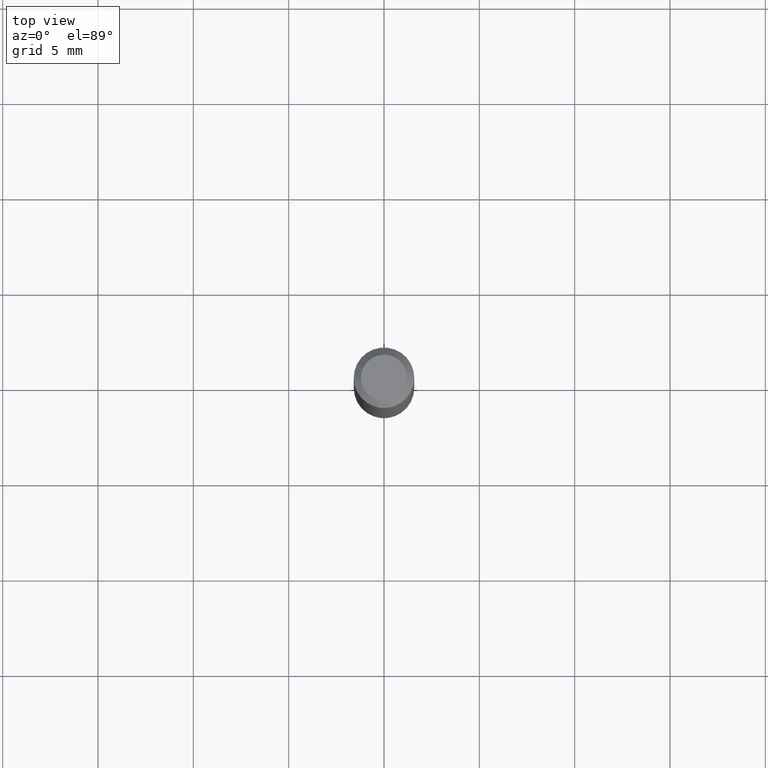
[diagram: clean part render]
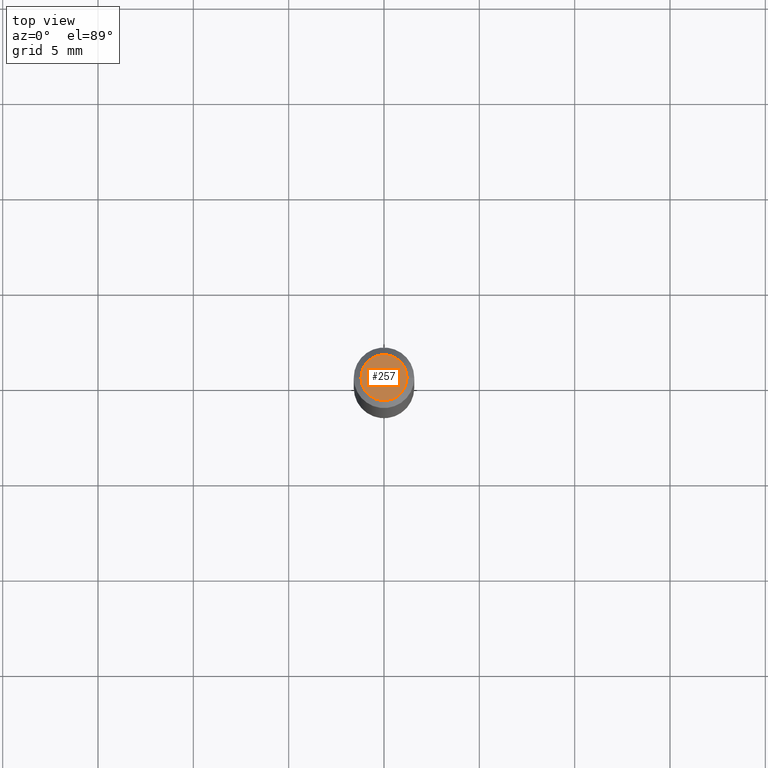
[diagram: same view with one face highlighted and labeled with its STEP entity id]
A machine part, top view. The second image highlights one B-rep face of the part: STEP entity #257.
In plain terms, the highlighted planar face has unit normal (0, -0, -1).
Its self-contained STEP definition (entity closure, byte-faithful):
#10 = CARTESIAN_POINT ( 'NONE',  ( 3.316907271900976096E-16, 0.04749999999999999362, -4.273281759770383169E-16 ) ) ;
#16 = EDGE_CURVE ( 'NONE', #374, #454, #460, .T. ) ;
#18 = EDGE_CURVE ( 'NONE', #454, #374, #49, .T. ) ;
#28 = CARTESIAN_POINT ( 'NONE',  ( 1.278896122067429216E-44, -1.825924719719875646E-30, -5.229656247639779395E-16 ) ) ;
#35 = DIRECTION ( 'NONE',  ( 1.000000000000000000, -6.982962677686267499E-15, 4.852736867747366768E-29 ) ) ;
#49 = CIRCLE ( 'NONE', #179, 0.04749999999999999362 ) ;
#70 = EDGE_LOOP ( 'NONE', ( #269, #209 ) ) ;
#89 = AXIS2_PLACEMENT_3D ( 'NONE', #28, #378, #35 ) ;
#144 = CARTESIAN_POINT ( 'NONE',  ( 0.04749999999999999362, -4.035134999187587991E-16, -5.229656247639753758E-16 ) ) ;
#179 = AXIS2_PLACEMENT_3D ( 'NONE', #318, #463, #276 ) ;
#195 = AXIS2_PLACEMENT_3D ( 'NONE', #10, #232, #260 ) ;
#200 = PLANE ( 'NONE',  #195 ) ;
#205 = CARTESIAN_POINT ( 'NONE',  ( -0.04749999999999999362, 3.578768372314202124E-16, -5.229656247639803061E-16 ) ) ;
#209 = ORIENTED_EDGE ( 'NONE', *, *, #18, .T. ) ;
#232 = DIRECTION ( 'NONE',  ( 2.438088387897960049E-29, -3.491481338843145188E-15, -1.000000000000000000 ) ) ;
#257 = ADVANCED_FACE ( 'NONE', ( #298 ), #200, .F. ) ;
#260 = DIRECTION ( 'NONE',  ( -1.000000000000000000, 6.982962677686265922E-15, -4.876176775795935793E-29 ) ) ;
#269 = ORIENTED_EDGE ( 'NONE', *, *, #16, .T. ) ;
#276 = DIRECTION ( 'NONE',  ( 1.000000000000000000, -6.982962677686267499E-15, 4.852736867747366768E-29 ) ) ;
#298 = FACE_OUTER_BOUND ( 'NONE', #70, .T. ) ;
#318 = CARTESIAN_POINT ( 'NONE',  ( 1.278896122067429216E-44, -1.825924719719875646E-30, -5.229656247639779395E-16 ) ) ;
#374 = VERTEX_POINT ( 'NONE', #205 ) ;
#378 = DIRECTION ( 'NONE',  ( -2.445468806185136597E-29, 3.491481338843145583E-15, 1.000000000000000000 ) ) ;
#454 = VERTEX_POINT ( 'NONE', #144 ) ;
#460 = CIRCLE ( 'NONE', #89, 0.04749999999999999362 ) ;
#463 = DIRECTION ( 'NONE',  ( -2.445468806185136597E-29, 3.491481338843145583E-15, 1.000000000000000000 ) ) ;